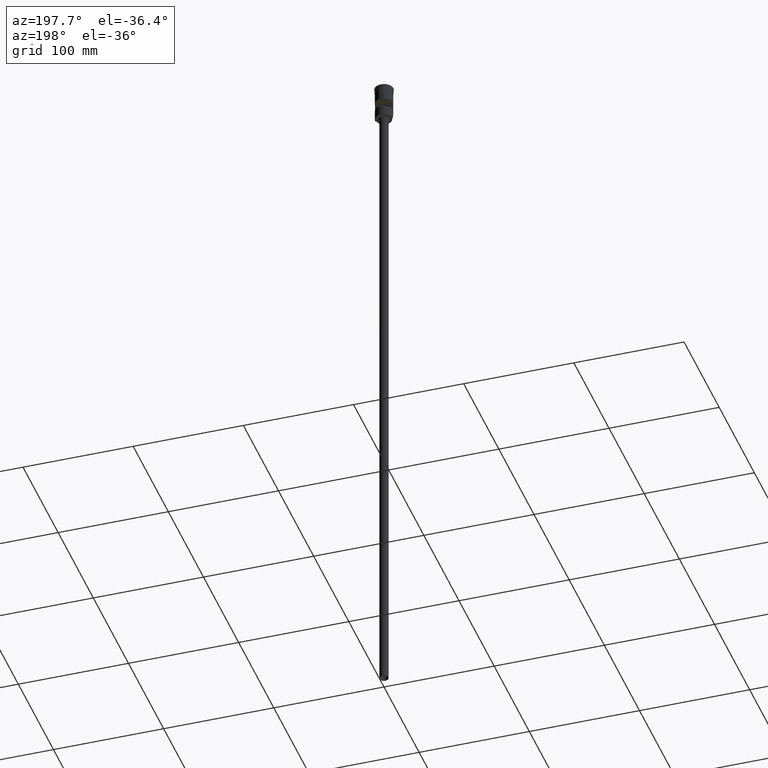
[diagram: clean part render]
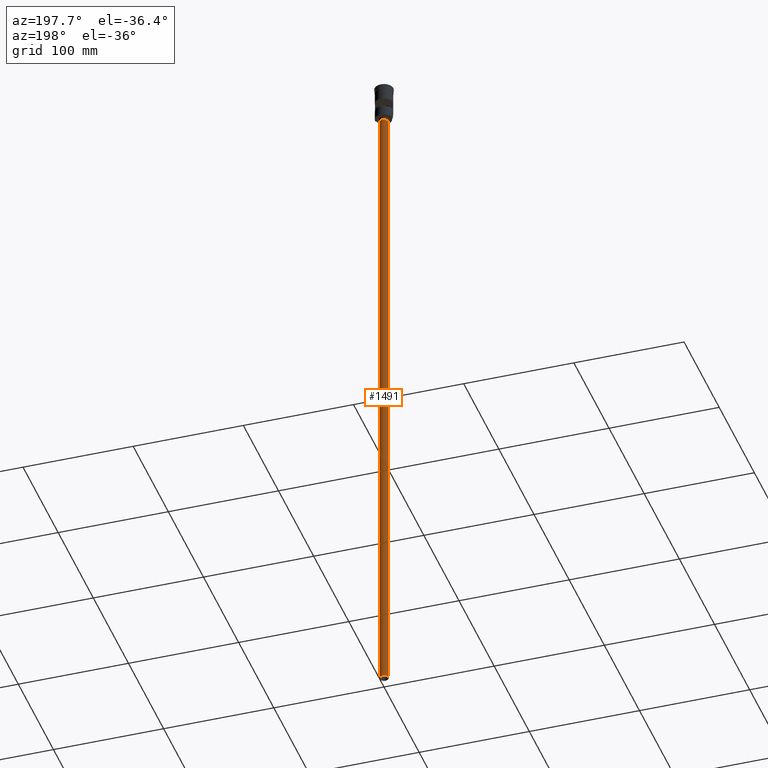
[diagram: same view with one face highlighted and labeled with its STEP entity id]
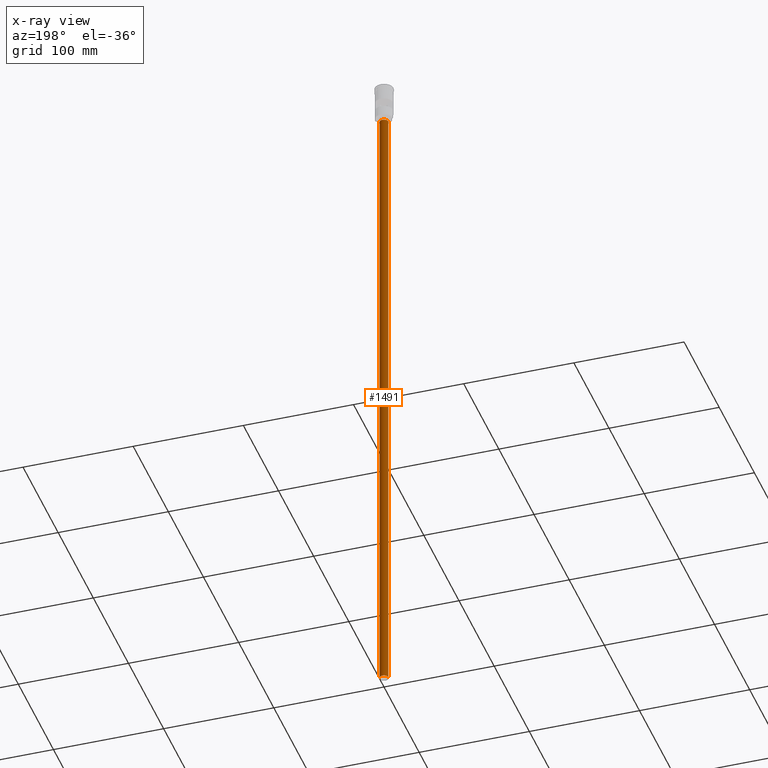
[diagram: x-ray of the same camera — body ghosted, the highlighted face saturated]
A machine part, auxiliary view. The second image highlights one B-rep face of the part: STEP entity #1491.
The next image is the same camera in x-ray: the body ghosted, the highlighted face saturated — about 0% of this face is hidden behind the body in this view.
In plain terms, the highlighted cylindrical surface (edge-blend (fillet) strip) has radius 4 mm, axis along (-0, -0, 1).
Its self-contained STEP definition (entity closure, byte-faithful):
#45 = CARTESIAN_POINT ( 'NONE',  ( -4.000000000000000000, 4.898587196589412829E-16, -35.00000000000000000 ) ) ;
#55 = DIRECTION ( 'NONE',  ( 0.000000000000000000, 0.000000000000000000, -1.000000000000000000 ) ) ;
#58 = LINE ( 'NONE', #1157, #922 ) ;
#94 = VERTEX_POINT ( 'NONE', #1382 ) ;
#133 = CIRCLE ( 'NONE', #1034, 4.000000000000000000 ) ;
#139 = ORIENTED_EDGE ( 'NONE', *, *, #294, .F. ) ;
#227 = ORIENTED_EDGE ( 'NONE', *, *, #1434, .T. ) ;
#260 = VECTOR ( 'NONE', #656, 1000.000000000000000 ) ;
#274 = DIRECTION ( 'NONE',  ( 0.000000000000000000, 0.000000000000000000, -1.000000000000000000 ) ) ;
#294 = EDGE_CURVE ( 'NONE', #900, #983, #58, .T. ) ;
#336 = AXIS2_PLACEMENT_3D ( 'NONE', #1159, #55, #1422 ) ;
#426 = DIRECTION ( 'NONE',  ( -0.000000000000000000, -0.000000000000000000, 1.000000000000000000 ) ) ;
#432 = DIRECTION ( 'NONE',  ( -0.000000000000000000, -0.000000000000000000, 1.000000000000000000 ) ) ;
#433 = CARTESIAN_POINT ( 'NONE',  ( 0.000000000000000000, 0.000000000000000000, -632.0000000000000000 ) ) ;
#487 = ORIENTED_EDGE ( 'NONE', *, *, #904, .T. ) ;
#521 = CARTESIAN_POINT ( 'NONE',  ( 0.000000000000000000, 0.000000000000000000, -35.00000000000000000 ) ) ;
#656 = DIRECTION ( 'NONE',  ( -0.000000000000000000, -0.000000000000000000, 1.000000000000000000 ) ) ;
#731 = CIRCLE ( 'NONE', #336, 4.000000000000000000 ) ;
#737 = ORIENTED_EDGE ( 'NONE', *, *, #1510, .F. ) ;
#762 = LINE ( 'NONE', #1255, #260 ) ;
#900 = VERTEX_POINT ( 'NONE', #911 ) ;
#904 = EDGE_CURVE ( 'NONE', #971, #983, #133, .T. ) ;
#911 = CARTESIAN_POINT ( 'NONE',  ( 4.000000000000000000, 0.000000000000000000, -632.0000000000000000 ) ) ;
#922 = VECTOR ( 'NONE', #432, 1000.000000000000000 ) ;
#941 = CARTESIAN_POINT ( 'NONE',  ( 4.000000000000000000, 0.000000000000000000, -35.00000000000000000 ) ) ;
#971 = VERTEX_POINT ( 'NONE', #45 ) ;
#983 = VERTEX_POINT ( 'NONE', #941 ) ;
#1014 = DIRECTION ( 'NONE',  ( -1.000000000000000000, 0.000000000000000000, 0.000000000000000000 ) ) ;
#1034 = AXIS2_PLACEMENT_3D ( 'NONE', #521, #274, #1014 ) ;
#1157 = CARTESIAN_POINT ( 'NONE',  ( 4.000000000000000000, 0.000000000000000000, -632.0000000000000000 ) ) ;
#1159 = CARTESIAN_POINT ( 'NONE',  ( 0.000000000000000000, 0.000000000000000000, -632.0000000000000000 ) ) ;
#1255 = CARTESIAN_POINT ( 'NONE',  ( -4.000000000000000000, 4.898587196589412829E-16, -632.0000000000000000 ) ) ;
#1329 = EDGE_LOOP ( 'NONE', ( #737, #227, #487, #139 ) ) ;
#1382 = CARTESIAN_POINT ( 'NONE',  ( -4.000000000000000000, 4.898587196589412829E-16, -632.0000000000000000 ) ) ;
#1408 = DIRECTION ( 'NONE',  ( 1.000000000000000000, 0.000000000000000000, 0.000000000000000000 ) ) ;
#1422 = DIRECTION ( 'NONE',  ( -1.000000000000000000, 0.000000000000000000, 0.000000000000000000 ) ) ;
#1434 = EDGE_CURVE ( 'NONE', #94, #971, #762, .T. ) ;
#1441 = FACE_OUTER_BOUND ( 'NONE', #1329, .T. ) ;
#1491 = ADVANCED_FACE ( 'NONE', ( #1441 ), #1567, .T. ) ;
#1508 = AXIS2_PLACEMENT_3D ( 'NONE', #433, #426, #1408 ) ;
#1510 = EDGE_CURVE ( 'NONE', #94, #900, #731, .T. ) ;
#1567 = CYLINDRICAL_SURFACE ( 'NONE', #1508, 4.000000000000000000 ) ;